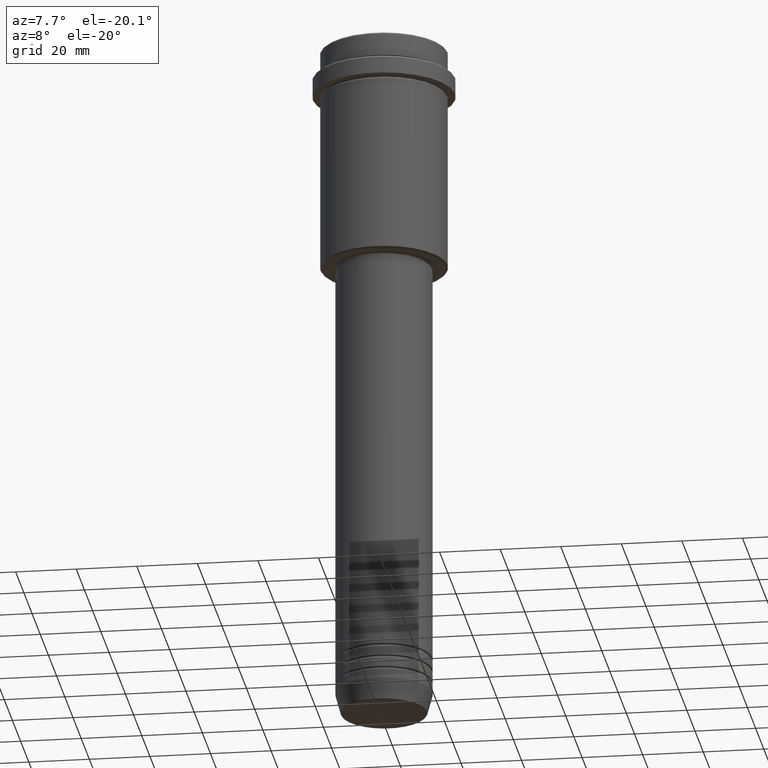
[diagram: clean part render]
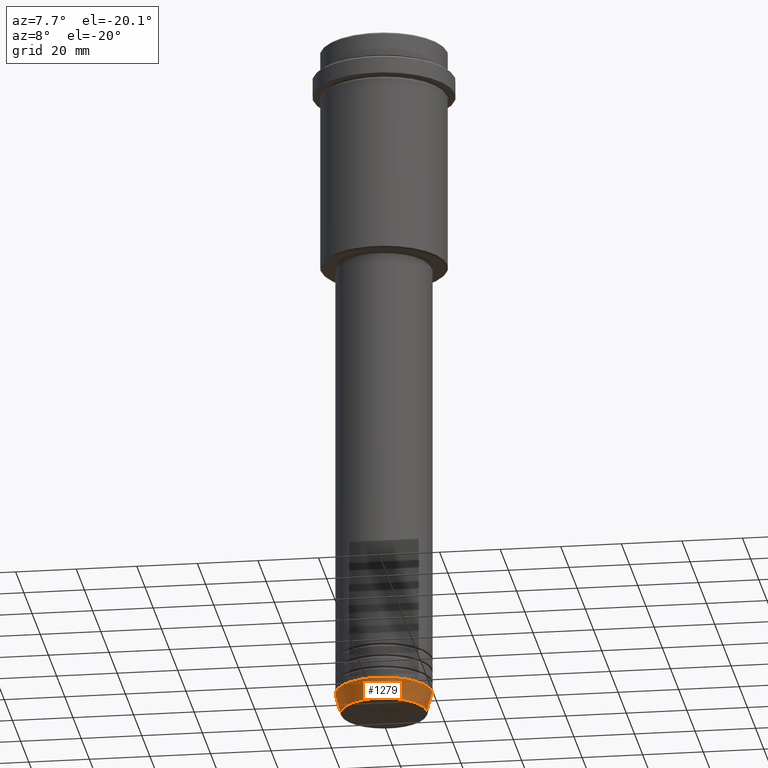
[diagram: same view with one face highlighted and labeled with its STEP entity id]
A machine part, auxiliary view. The second image highlights one B-rep face of the part: STEP entity #1279.
In plain terms, the highlighted conical surface has half-angle 15 deg.
Its self-contained STEP definition (entity closure, byte-faithful):
#38 = VERTEX_POINT ( 'NONE', #70 ) ;
#43 = CARTESIAN_POINT ( 'NONE',  ( 16.00000000000000000, 0.000000000000000000, -223.0000000000000284 ) ) ;
#47 = VERTEX_POINT ( 'NONE', #328 ) ;
#53 = CARTESIAN_POINT ( 'NONE',  ( 0.000000000000000000, 0.000000000000000000, -229.6294095225512990 ) ) ;
#70 = CARTESIAN_POINT ( 'NONE',  ( -16.00000000000000000, 1.959434878635765131E-15, -223.0000000000000284 ) ) ;
#115 = CARTESIAN_POINT ( 'NONE',  ( 0.000000000000000000, 0.000000000000000000, -223.0000000000000284 ) ) ;
#117 = EDGE_CURVE ( 'NONE', #47, #38, #1201, .T. ) ;
#185 = ORIENTED_EDGE ( 'NONE', *, *, #645, .F. ) ;
#200 = ORIENTED_EDGE ( 'NONE', *, *, #512, .T. ) ;
#212 = DIRECTION ( 'NONE',  ( -0.2588190451025205174, 3.169619151431761243E-17, 0.9659258262890684232 ) ) ;
#232 = ORIENTED_EDGE ( 'NONE', *, *, #117, .F. ) ;
#253 = VECTOR ( 'NONE', #212, 1000.000000000000114 ) ;
#258 = DIRECTION ( 'NONE',  ( -0.000000000000000000, -0.000000000000000000, 1.000000000000000000 ) ) ;
#278 = AXIS2_PLACEMENT_3D ( 'NONE', #115, #258, #924 ) ;
#295 = EDGE_LOOP ( 'NONE', ( #232, #1230, #200, #185 ) ) ;
#310 = CARTESIAN_POINT ( 'NONE',  ( 14.22365507213720548, 0.000000000000000000, -229.6294095225512990 ) ) ;
#315 = EDGE_CURVE ( 'NONE', #47, #1412, #744, .T. ) ;
#328 = CARTESIAN_POINT ( 'NONE',  ( -14.22365507213720548, 1.850665122131324520E-15, -229.6294095225512990 ) ) ;
#387 = CARTESIAN_POINT ( 'NONE',  ( 0.000000000000000000, 0.000000000000000000, -223.0000000000000284 ) ) ;
#391 = DIRECTION ( 'NONE',  ( 1.000000000000000000, 0.000000000000000000, 0.000000000000000000 ) ) ;
#487 = DIRECTION ( 'NONE',  ( -0.000000000000000000, -0.000000000000000000, 1.000000000000000000 ) ) ;
#512 = EDGE_CURVE ( 'NONE', #1412, #1031, #712, .T. ) ;
#527 = FACE_OUTER_BOUND ( 'NONE', #295, .T. ) ;
#554 = CARTESIAN_POINT ( 'NONE',  ( 16.00000000000000000, 0.000000000000000000, -223.0000000000000284 ) ) ;
#645 = EDGE_CURVE ( 'NONE', #38, #1031, #1133, .T. ) ;
#712 = LINE ( 'NONE', #43, #885 ) ;
#744 = CIRCLE ( 'NONE', #933, 14.22365507213720548 ) ;
#748 = AXIS2_PLACEMENT_3D ( 'NONE', #387, #1372, #1052 ) ;
#791 = DIRECTION ( 'NONE',  ( 0.2588190451025205174, 0.000000000000000000, 0.9659258262890684232 ) ) ;
#885 = VECTOR ( 'NONE', #791, 1000.000000000000114 ) ;
#905 = CONICAL_SURFACE ( 'NONE', #748, 16.00000000000000000, 0.2617993877991491303 ) ;
#924 = DIRECTION ( 'NONE',  ( 1.000000000000000000, 0.000000000000000000, 0.000000000000000000 ) ) ;
#933 = AXIS2_PLACEMENT_3D ( 'NONE', #53, #487, #391 ) ;
#976 = CARTESIAN_POINT ( 'NONE',  ( -16.00000000000000000, 1.959434878635765131E-15, -223.0000000000000284 ) ) ;
#1031 = VERTEX_POINT ( 'NONE', #554 ) ;
#1052 = DIRECTION ( 'NONE',  ( 1.000000000000000000, 0.000000000000000000, 0.000000000000000000 ) ) ;
#1133 = CIRCLE ( 'NONE', #278, 16.00000000000000000 ) ;
#1201 = LINE ( 'NONE', #976, #253 ) ;
#1230 = ORIENTED_EDGE ( 'NONE', *, *, #315, .T. ) ;
#1279 = ADVANCED_FACE ( 'NONE', ( #527 ), #905, .T. ) ;
#1372 = DIRECTION ( 'NONE',  ( -0.000000000000000000, -0.000000000000000000, 1.000000000000000000 ) ) ;
#1412 = VERTEX_POINT ( 'NONE', #310 ) ;